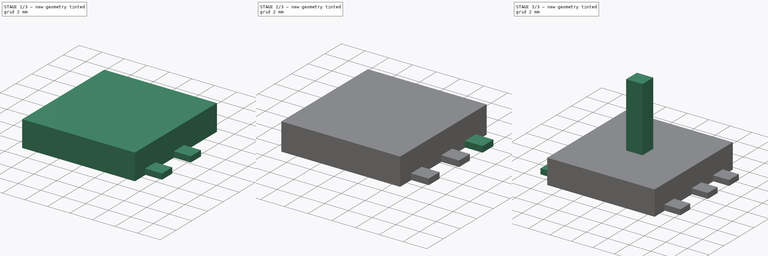
[diagram: build sequence overview — one tinted view per stage of 3, left to right]
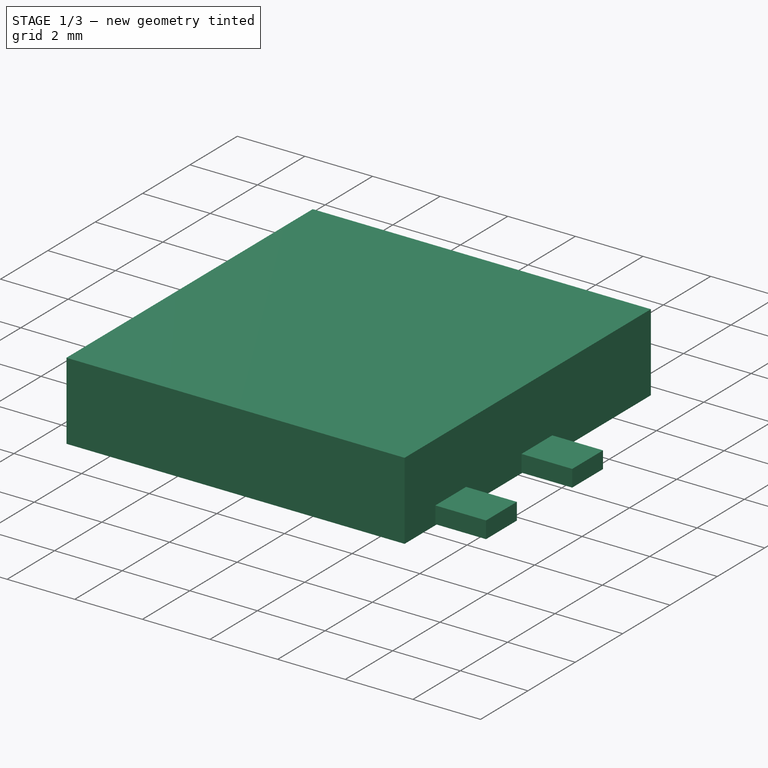
[diagram: stage 1 of 3 — iso view after this stage's code; geometry added in this stage tinted green]
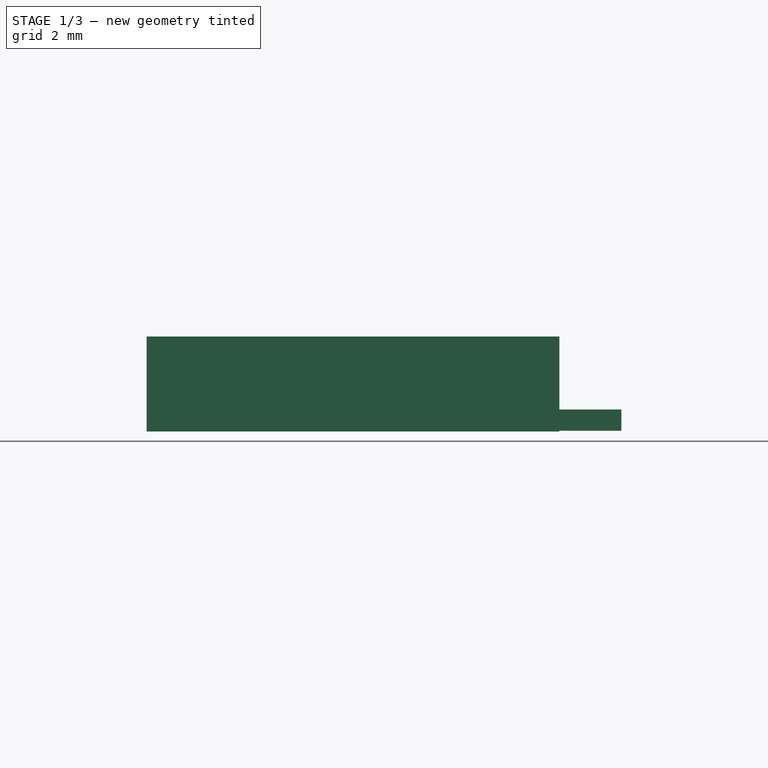
[diagram: stage 1 of 3 — front view after this stage's code; geometry added in this stage tinted green]
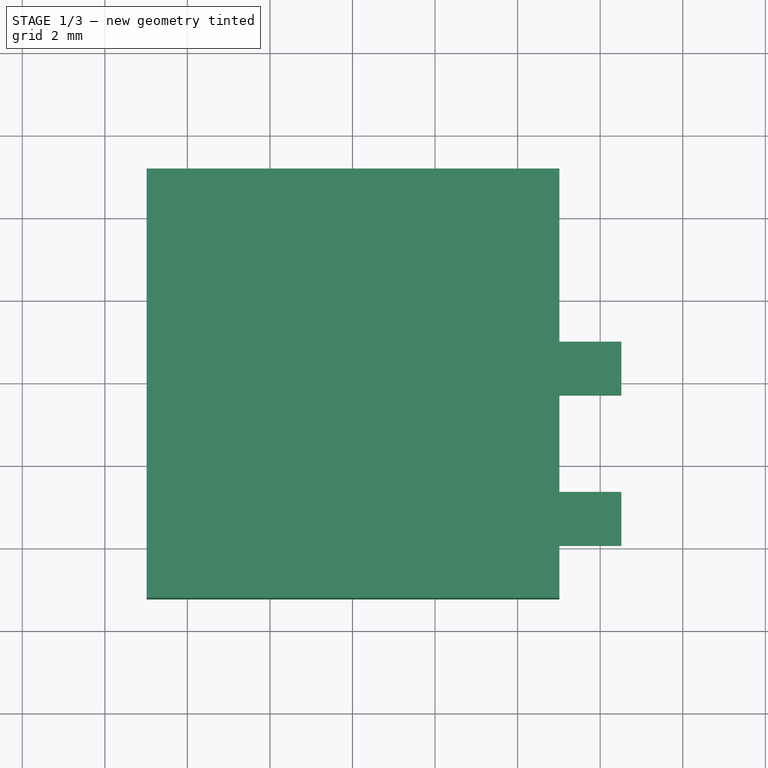
[diagram: stage 1 of 3 — top view after this stage's code; geometry added in this stage tinted green]
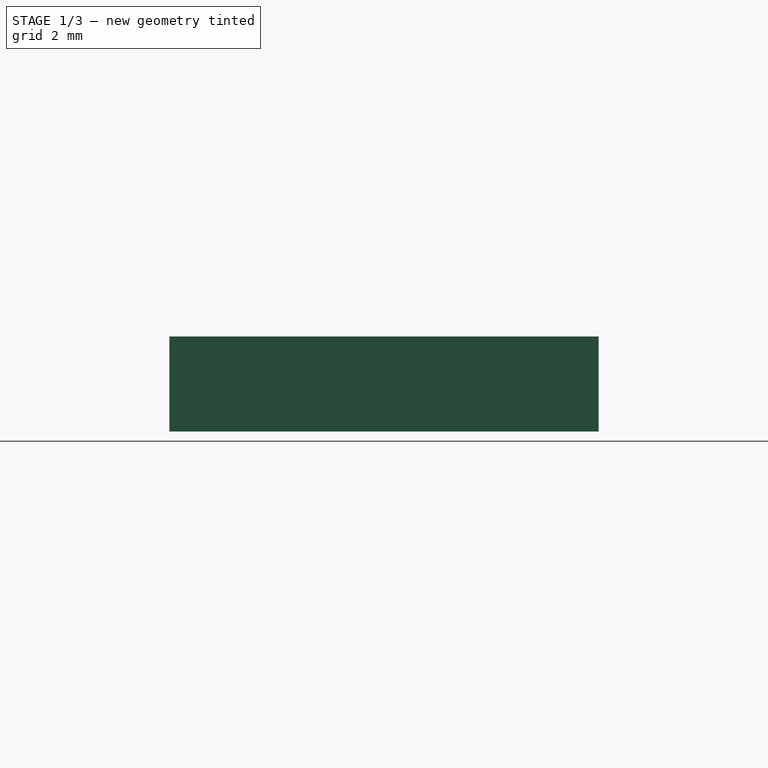
[diagram: stage 1 of 3 — right view after this stage's code; geometry added in this stage tinted green]
FCSTD DOCUMENT  (FreeCAD 1.0R39109 (Git))
Label: 5wayjoy
License: All rights reserved
LicenseURL: http://en.wikipedia.org/wiki/All_rights_reserved
objects: Sketcher::SketchObject×8, PartDesign::Pad×8, Image::ImagePlane×1, PartDesign::Body×1, App::Part×1
note: 41 computed .brp shape members not serialized (recipe doc carries the construction recipe); baked Part::Feature solids carry a one-line shape summary decoded from their .brp

FEATURE [Image::ImagePlane] Screenshot_2025_02_11_at_7  label="Screenshot 2025-02-11 at 7"
  XSize = 13
  YSize = 10.4
FEATURE [Sketcher::SketchObject] Sketch
  ArcFitTolerance = 1e-06
  AttachmentSupport = -> [XY_Plane002]
  FullyConstrained = false
  MakeInternals = false
  MapMode = 5
  sketch-geometry (4):
    g0: LineSegment StartX=-4.98756 StartY=5.17166 StartZ=0 EndX=-4.98756 EndY=-5.22834 EndZ=0
    g1: LineSegment StartX=-4.98756 StartY=-5.22834 StartZ=0 EndX=5.01244 EndY=-5.22834 EndZ=0
    g2: LineSegment StartX=5.01244 StartY=-5.22834 StartZ=0 EndX=5.01244 EndY=5.17166 EndZ=0
    g3: LineSegment StartX=5.01244 StartY=5.17166 StartZ=0 EndX=-4.98756 EndY=5.17166 EndZ=0
  constraints (10):
    c: Coincident(g0,g1)
    c: Coincident(g1,g2)
    c: Coincident(g2,g3)
    c: Coincident(g3,g0)
    c: Vertical(g0)
    c: Vertical(g2)
    c: Horizontal(g1)
    c: Horizontal(g3)
    c: DistanceY(g0,g0) = 10.4
    c: DistanceX(g3,g3) = 10
FEATURE [PartDesign::Pad] Pad  label="core"
  Direction = (0,0,1)
  Length = 2.3
  Length2 = 10
  Profile = -> Sketch
  ReferenceAxis = -> Sketch [N_Axis]
  Suppressed = false
  Type = 0
FEATURE [Sketcher::SketchObject] Sketch001
  ArcFitTolerance = 1e-06
  AttachmentSupport = -> [Pad]
  FullyConstrained = false
  MakeInternals = false
  MapMode = 5
  Placement = pos=(5.01244,0,0) rot=(0.57735,0.57735,0.57735;2.0944rad)
  sketch-geometry (4):
    g0: LineSegment StartX=-2.63001 StartY=0.03105 StartZ=0 EndX=-2.63001 EndY=0.53105 EndZ=0
    g1: LineSegment StartX=-2.63001 StartY=0.53105 StartZ=0 EndX=-3.93001 EndY=0.53105 EndZ=0
    g2: LineSegment StartX=-3.93001 StartY=0.53105 StartZ=0 EndX=-3.93001 EndY=0.03105 EndZ=0
    g3: LineSegment StartX=-3.93001 StartY=0.03105 StartZ=0 EndX=-2.63001 EndY=0.03105 EndZ=0
  constraints (10):
    c: Coincident(g0,g1)
    c: Coincident(g1,g2)
    c: Coincident(g2,g3)
    c: Coincident(g3,g0)
    c: Vertical(g0)
    c: Vertical(g2)
    c: Horizontal(g1)
    c: Horizontal(g3)
    c: DistanceY(g2,g2) = 0.5
    c: DistanceX(g1,g1) = 1.3
FEATURE [PartDesign::Pad] Pad001
  BaseFeature = -> Pad
  Direction = (1,0,0)
  Length = 1.5
  Length2 = 10
  Profile = -> Sketch001
  ReferenceAxis = -> Sketch001 [N_Axis]
  Suppressed = false
  Type = 0
FEATURE [Sketcher::SketchObject] Sketch002
  ArcFitTolerance = 1e-06
  AttachmentSupport = -> [Pad001]
  FullyConstrained = false
  MakeInternals = false
  MapMode = 5
  Placement = pos=(5.01244,0,0) rot=(0.57735,0.57735,0.57735;2.0944rad)
  sketch-geometry (4):
    g0: LineSegment StartX=-0.290465 StartY=0.018131 StartZ=0 EndX=1.00954 EndY=0.018131 EndZ=0
    g1: LineSegment StartX=1.00954 StartY=0.018131 StartZ=0 EndX=1.00954 EndY=0.518131 EndZ=0
    g2: LineSegment StartX=1.00954 StartY=0.518131 StartZ=0 EndX=-0.290465 EndY=0.518131 EndZ=0
    g3: LineSegment StartX=-0.290465 StartY=0.518131 StartZ=0 EndX=-0.290465 EndY=0.018131 EndZ=0
  constraints (10):
    c: Coincident(g0,g1)
    c: Coincident(g1,g2)
    c: Coincident(g2,g3)
    c: Coincident(g3,g0)
    c: Horizontal(g0)
    c: Horizontal(g2)
    c: Vertical(g1)
    c: Vertical(g3)
    c: Distance(g1,g3) = 1.3
    c: Distance(g0,g2) = 0.5
FEATURE [PartDesign::Pad] Pad002
  BaseFeature = -> Pad001
  Direction = (1,0,0)
  Length = 1.5
  Length2 = 10
  Profile = -> Sketch002
  ReferenceAxis = -> Sketch002 [N_Axis]
  Suppressed = false
  Type = 0
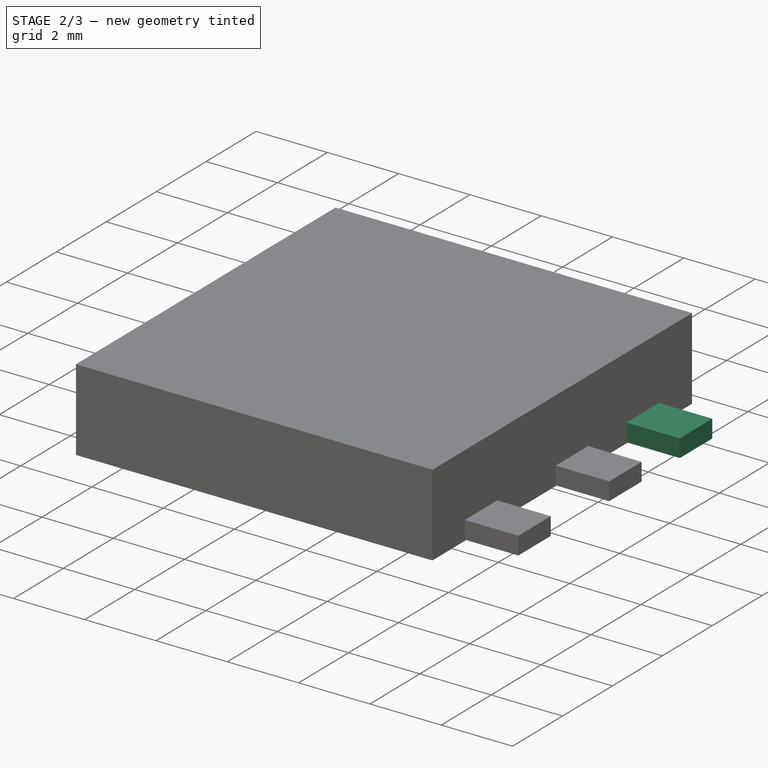
[diagram: stage 2 of 3 — iso view after this stage's code; geometry added in this stage tinted green]
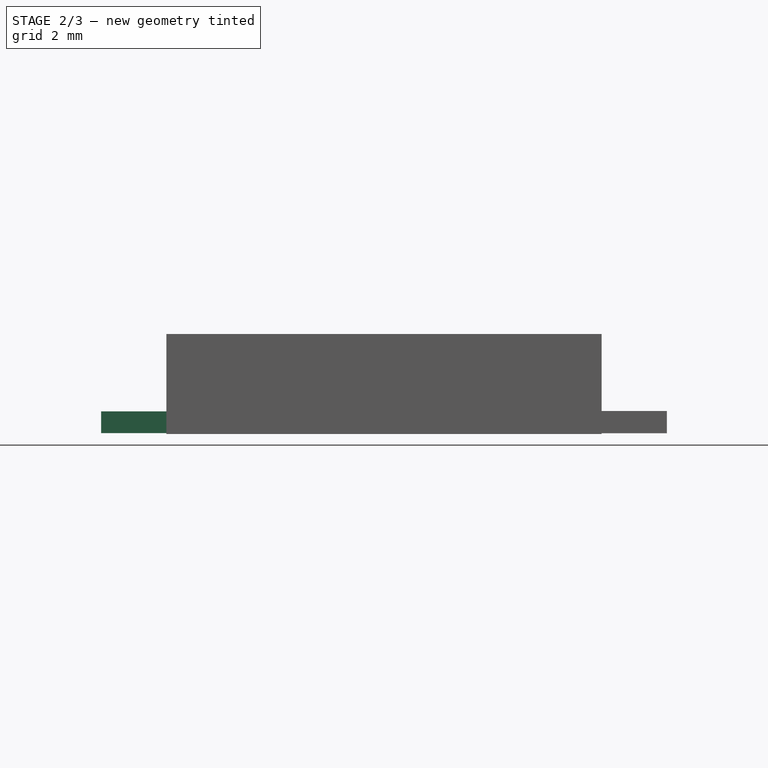
[diagram: stage 2 of 3 — front view after this stage's code; geometry added in this stage tinted green]
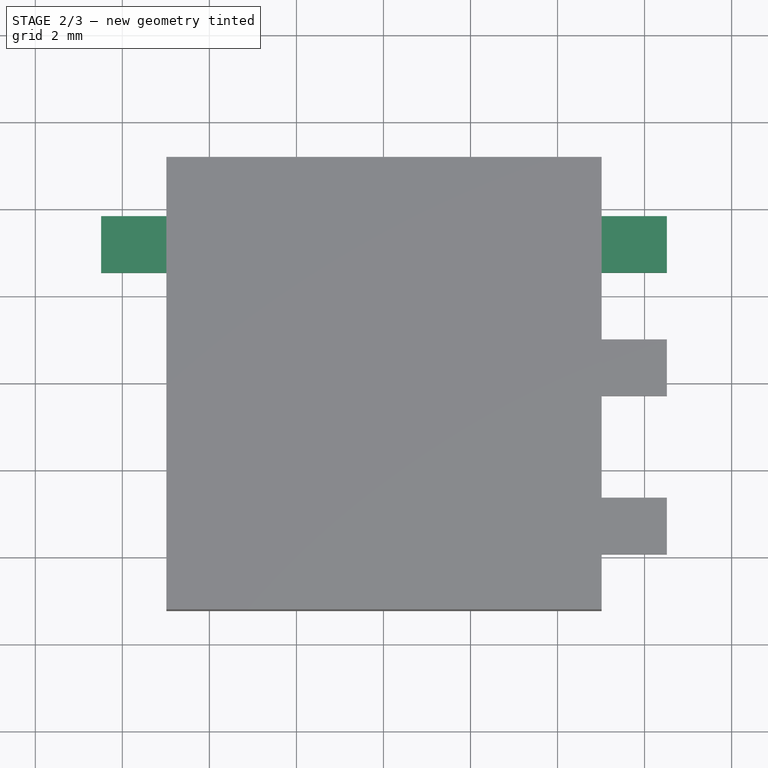
[diagram: stage 2 of 3 — top view after this stage's code; geometry added in this stage tinted green]
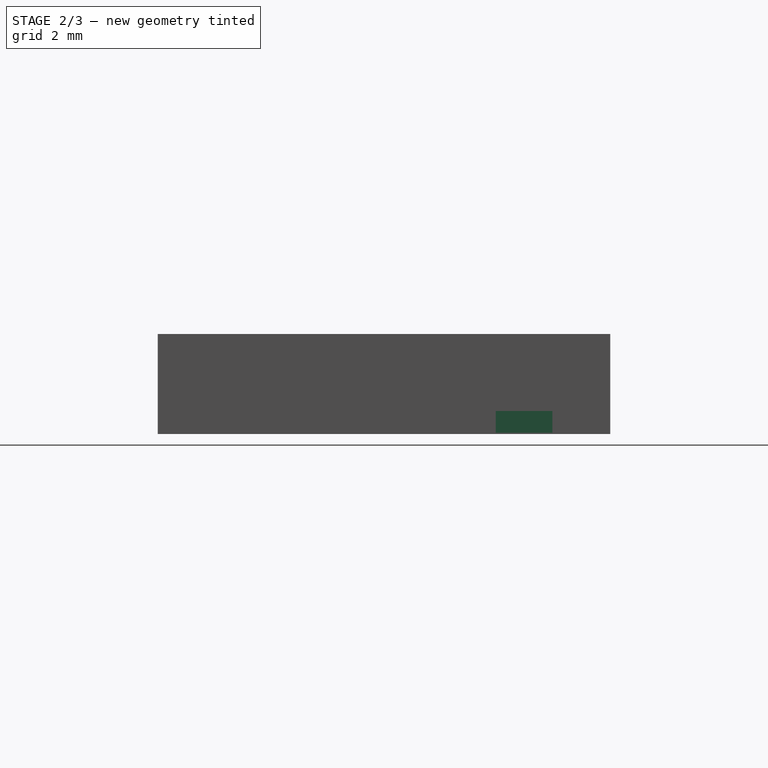
[diagram: stage 2 of 3 — right view after this stage's code; geometry added in this stage tinted green]
FEATURE [Sketcher::SketchObject] Sketch003
  ArcFitTolerance = 1e-06
  AttachmentSupport = -> [Pad002]
  FullyConstrained = false
  MakeInternals = false
  MapMode = 5
  Placement = pos=(5.01244,0,0) rot=(0.57735,0.57735,0.57735;2.0944rad)
  sketch-geometry (4):
    g0: LineSegment StartX=2.54083 StartY=0.029882 StartZ=0 EndX=3.84083 EndY=0.029882 EndZ=0
    g1: LineSegment StartX=3.84083 StartY=0.029882 StartZ=0 EndX=3.84083 EndY=0.529882 EndZ=0
    g2: LineSegment StartX=3.84083 StartY=0.529882 StartZ=0 EndX=2.54083 EndY=0.529882 EndZ=0
    g3: LineSegment StartX=2.54083 StartY=0.529882 StartZ=0 EndX=2.54083 EndY=0.029882 EndZ=0
  constraints (10):
    c: Coincident(g0,g1)
    c: Coincident(g1,g2)
    c: Coincident(g2,g3)
    c: Coincident(g3,g0)
    c: Horizontal(g0)
    c: Horizontal(g2)
    c: Vertical(g1)
    c: Vertical(g3)
    c: Distance(g1,g3) = 1.3
    c: Distance(g0,g2) = 0.5
FEATURE [PartDesign::Pad] Pad003
  BaseFeature = -> Pad002
  Direction = (1,0,0)
  Length = 1.5
  Length2 = 10
  Profile = -> Sketch003
  ReferenceAxis = -> Sketch003 [N_Axis]
  Suppressed = false
  Type = 0
FEATURE [Sketcher::SketchObject] Sketch004
  ArcFitTolerance = 1e-06
  AttachmentSupport = -> [Pad003]
  FullyConstrained = false
  MakeInternals = false
  MapMode = 5
  Placement = pos=(-4.98756,0,0) rot=(0.57735,-0.57735,-0.57735;2.0944rad)
  sketch-geometry (4):
    g0: LineSegment StartX=-3.83965 StartY=0.020427 StartZ=0 EndX=-2.53965 EndY=0.020427 EndZ=0
    g1: LineSegment StartX=-2.53965 StartY=0.020427 StartZ=0 EndX=-2.53965 EndY=0.520427 EndZ=0
    g2: LineSegment StartX=-2.53965 StartY=0.520427 StartZ=0 EndX=-3.83965 EndY=0.520427 EndZ=0
    g3: LineSegment StartX=-3.83965 StartY=0.520427 StartZ=0 EndX=-3.83965 EndY=0.020427 EndZ=0
  constraints (10):
    c: Coincident(g0,g1)
    c: Coincident(g1,g2)
    c: Coincident(g2,g3)
    c: Coincident(g3,g0)
    c: Horizontal(g0)
    c: Horizontal(g2)
    c: Vertical(g1)
    c: Vertical(g3)
    c: Distance(g1,g3) = 1.3
    c: Distance(g0,g2) = 0.5
FEATURE [PartDesign::Pad] Pad004
  BaseFeature = -> Pad003
  Direction = (-1,0,0)
  Length = 1.5
  Length2 = 10
  Profile = -> Sketch004
  ReferenceAxis = -> Sketch004 [N_Axis]
  Suppressed = false
  Type = 0
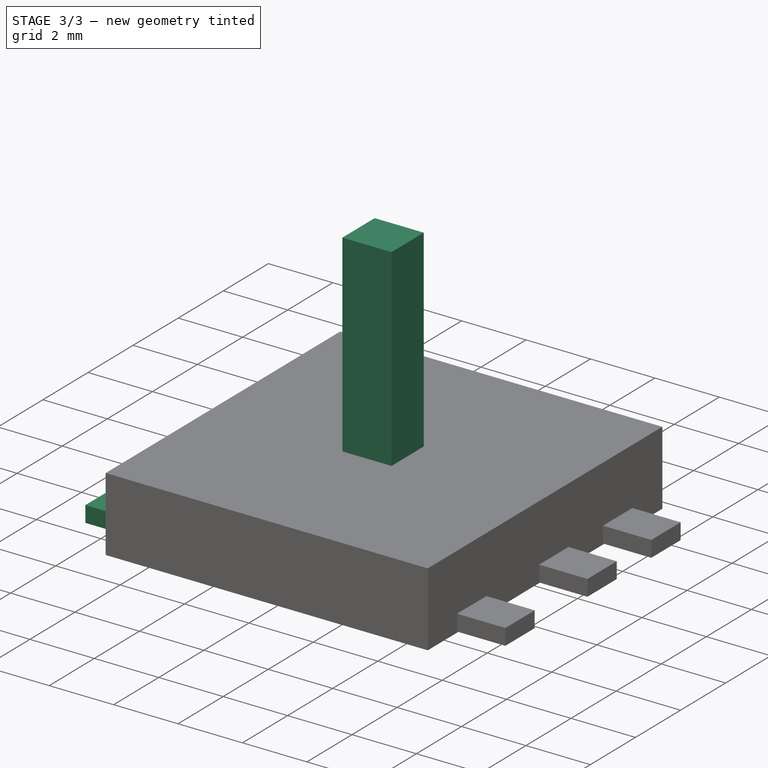
[diagram: stage 3 of 3 — iso view after this stage's code; geometry added in this stage tinted green]
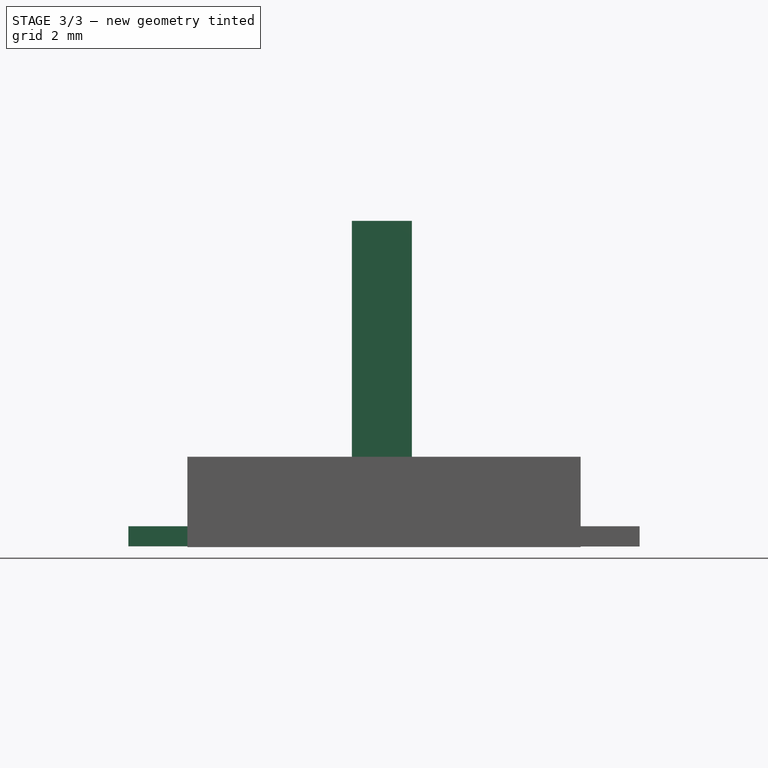
[diagram: stage 3 of 3 — front view after this stage's code; geometry added in this stage tinted green]
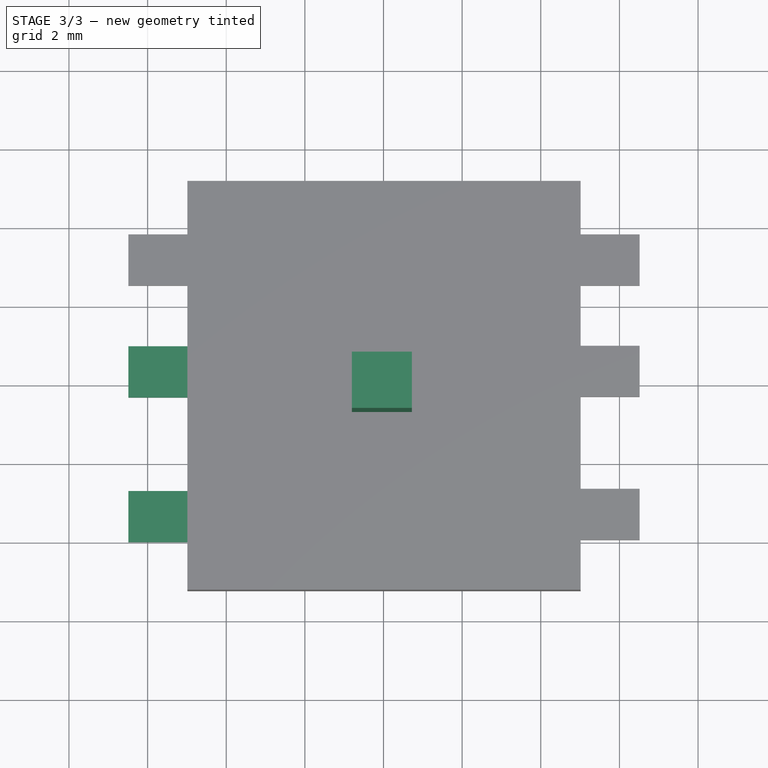
[diagram: stage 3 of 3 — top view after this stage's code; geometry added in this stage tinted green]
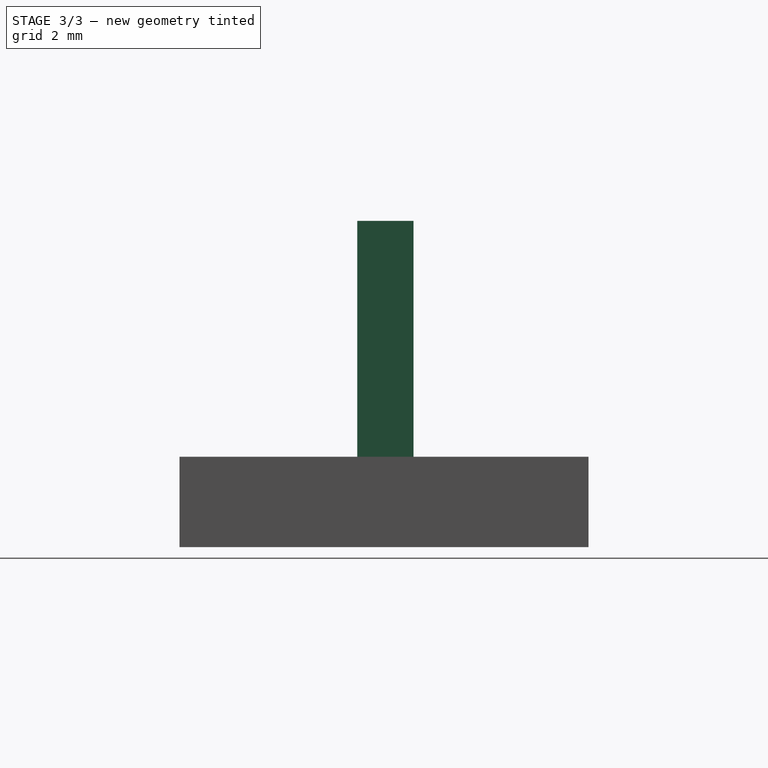
[diagram: stage 3 of 3 — right view after this stage's code; geometry added in this stage tinted green]
FEATURE [Sketcher::SketchObject] Sketch005
  ArcFitTolerance = 1e-06
  AttachmentSupport = -> [Pad004]
  FullyConstrained = false
  MakeInternals = false
  MapMode = 5
  Placement = pos=(-4.98756,0,0) rot=(0.57735,-0.57735,-0.57735;2.0944rad)
  sketch-geometry (4):
    g0: LineSegment StartX=-0.994432 StartY=0.033241 StartZ=0 EndX=0.305568 EndY=0.033241 EndZ=0
    g1: LineSegment StartX=0.305568 StartY=0.033241 StartZ=0 EndX=0.305568 EndY=0.533241 EndZ=0
    g2: LineSegment StartX=0.305568 StartY=0.533241 StartZ=0 EndX=-0.994432 EndY=0.533241 EndZ=0
    g3: LineSegment StartX=-0.994432 StartY=0.533241 StartZ=0 EndX=-0.994432 EndY=0.033241 EndZ=0
  constraints (10):
    c: Coincident(g0,g1)
    c: Coincident(g1,g2)
    c: Coincident(g2,g3)
    c: Coincident(g3,g0)
    c: Horizontal(g0)
    c: Horizontal(g2)
    c: Vertical(g1)
    c: Vertical(g3)
    c: Distance(g1,g3) = 1.3
    c: Distance(g0,g2) = 0.5
FEATURE [PartDesign::Pad] Pad005
  BaseFeature = -> Pad004
  Direction = (-1,0,0)
  Length = 1.5
  Length2 = 10
  Profile = -> Sketch005
  ReferenceAxis = -> Sketch005 [N_Axis]
  Suppressed = false
  Type = 0
FEATURE [Sketcher::SketchObject] Sketch006
  ArcFitTolerance = 1e-06
  AttachmentSupport = -> [Pad005]
  FullyConstrained = false
  MakeInternals = false
  MapMode = 5
  Placement = pos=(-4.98756,0,0) rot=(0.57735,-0.57735,-0.57735;2.0944rad)
  sketch-geometry (4):
    g0: LineSegment StartX=2.68528 StartY=0.025285 StartZ=0 EndX=3.98528 EndY=0.025285 EndZ=0
    g1: LineSegment StartX=3.98528 StartY=0.025285 StartZ=0 EndX=3.98528 EndY=0.525285 EndZ=0
    g2: LineSegment StartX=3.98528 StartY=0.525285 StartZ=0 EndX=2.68528 EndY=0.525285 EndZ=0
    g3: LineSegment StartX=2.68528 StartY=0.525285 StartZ=0 EndX=2.68528 EndY=0.025285 EndZ=0
  constraints (10):
    c: Coincident(g0,g1)
    c: Coincident(g1,g2)
    c: Coincident(g2,g3)
    c: Coincident(g3,g0)
    c: Horizontal(g0)
    c: Horizontal(g2)
    c: Vertical(g1)
    c: Vertical(g3)
    c: Distance(g1,g3) = 1.3
    c: Distance(g0,g2) = 0.5
FEATURE [PartDesign::Pad] Pad006
  BaseFeature = -> Pad005
  Direction = (-1,0,0)
  Length = 1.5
  Length2 = 10
  Profile = -> Sketch006
  ReferenceAxis = -> Sketch006 [N_Axis]
  Suppressed = false
  Type = 0
FEATURE [Sketcher::SketchObject] Sketch007
  ArcFitTolerance = 1e-06
  AttachmentSupport = -> [Pad006]
  FullyConstrained = false
  MakeInternals = false
  MapMode = 5
  Placement = pos=(0,0,2.3) rot=(0,0,1;0rad)
  sketch-geometry (4):
    g0: LineSegment StartX=-0.803179 StartY=0.722888 StartZ=0 EndX=-0.803179 EndY=-0.708233 EndZ=0
    g1: LineSegment StartX=-0.803179 StartY=-0.708233 StartZ=0 EndX=0.721567 EndY=-0.708233 EndZ=0
    g2: LineSegment StartX=0.721567 StartY=-0.708233 StartZ=0 EndX=0.721567 EndY=0.722888 EndZ=0
    g3: LineSegment StartX=0.721567 StartY=0.722888 StartZ=0 EndX=-0.803179 EndY=0.722888 EndZ=0
  constraints (8):
    c: Coincident(g0,g1)
    c: Coincident(g1,g2)
    c: Coincident(g2,g3)
    c: Coincident(g3,g0)
    c: Vertical(g0)
    c: Vertical(g2)
    c: Horizontal(g1)
    c: Horizontal(g3)
FEATURE [PartDesign::Pad] Pad007
  BaseFeature = -> Pad006
  Direction = (0,0,1)
  Length = 6
  Length2 = 10
  Profile = -> Sketch007
  ReferenceAxis = -> Sketch007 [N_Axis]
  Suppressed = false
  Type = 0
FEATURE [PartDesign::Body] Body001  label="main body"
  AllowCompound = false
  Group = -> [Sketch,Pad,Sketch001,Pad001,Sketch002,Pad002,Sketch003,Pad003,Sketch004,Pad004,Sketch005,Pad005,Sketch006,Pad006,Sketch007,Pad007]
  Origin = -> Origin002
  Tip = -> Pad007
FEATURE [App::Part] Part
  Group = -> [Body001]
  Origin = -> Origin
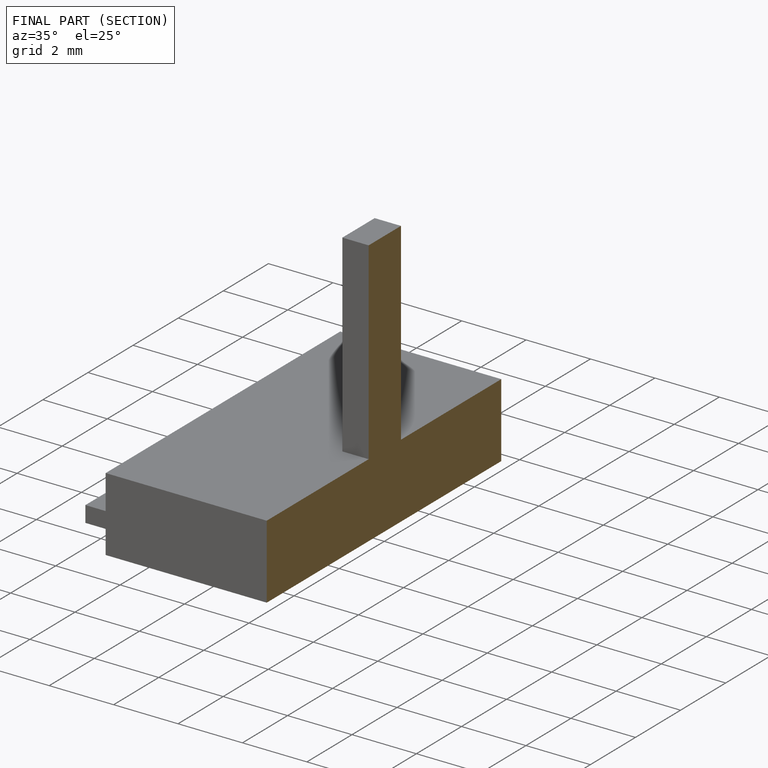
[diagram: finished part — half-section view (interior)]
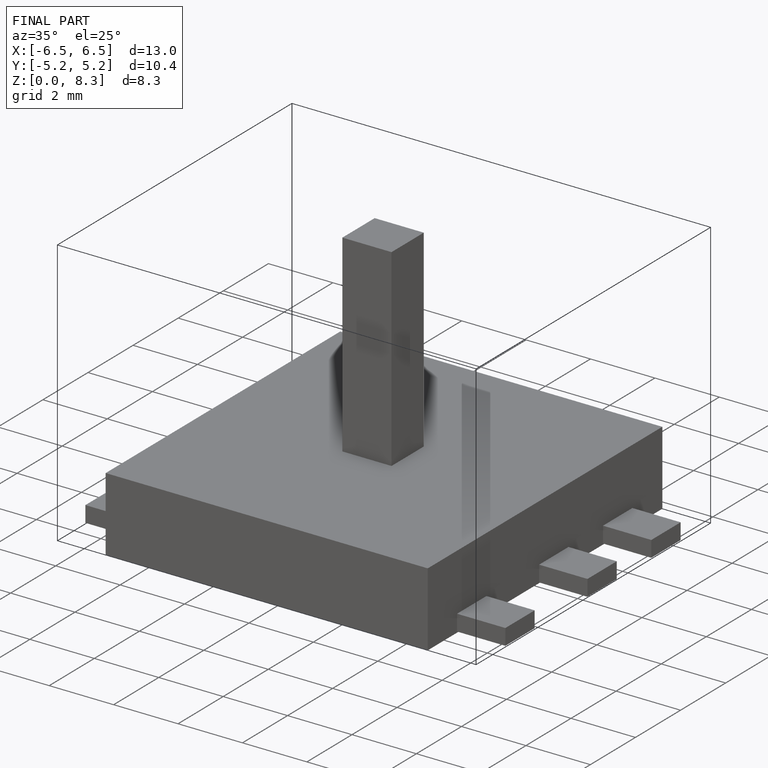
[diagram: finished part — iso view with bounding-box wireframe]
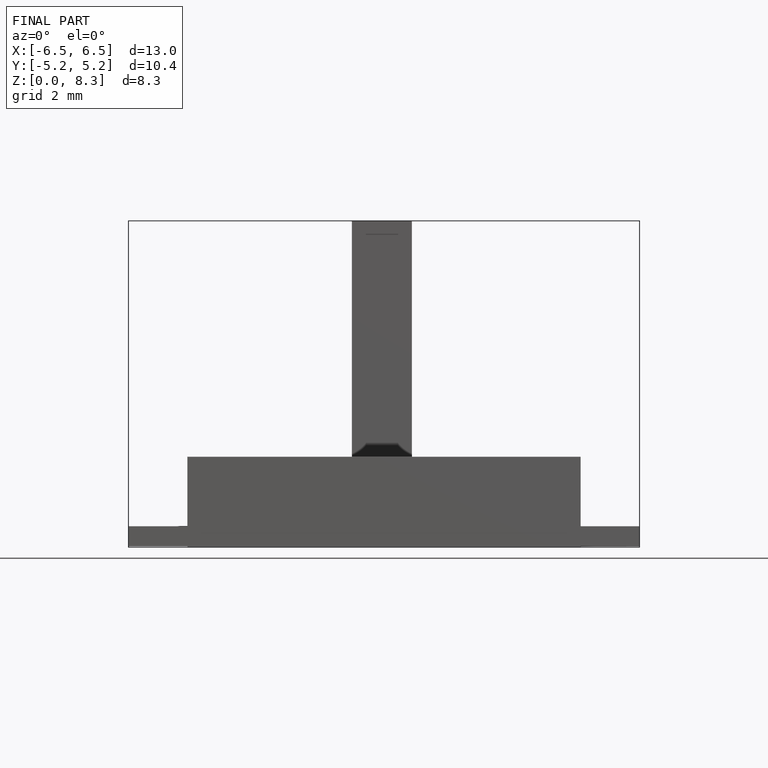
[diagram: finished part — front view with bounding-box wireframe]
